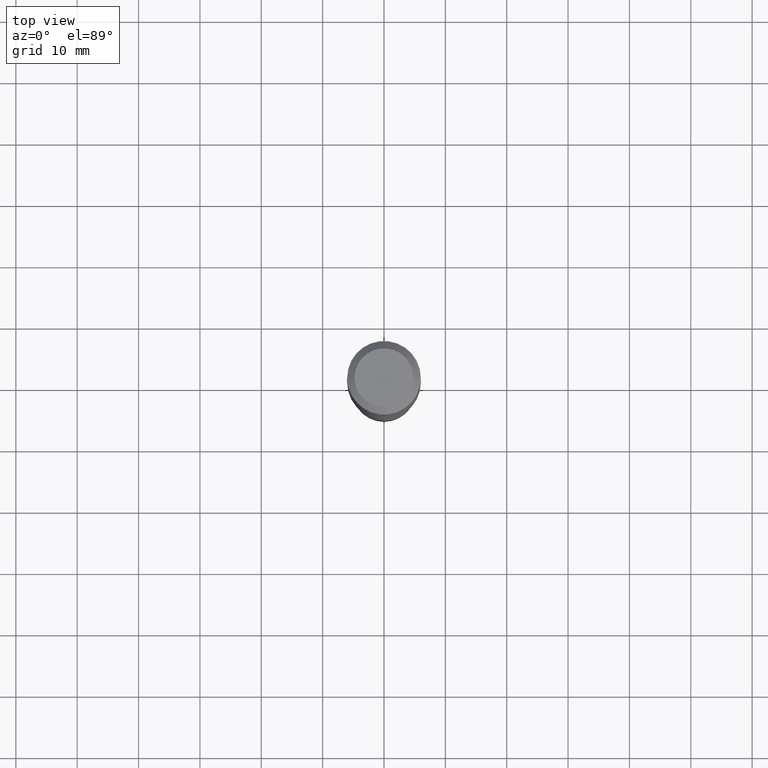
[diagram: clean part render]
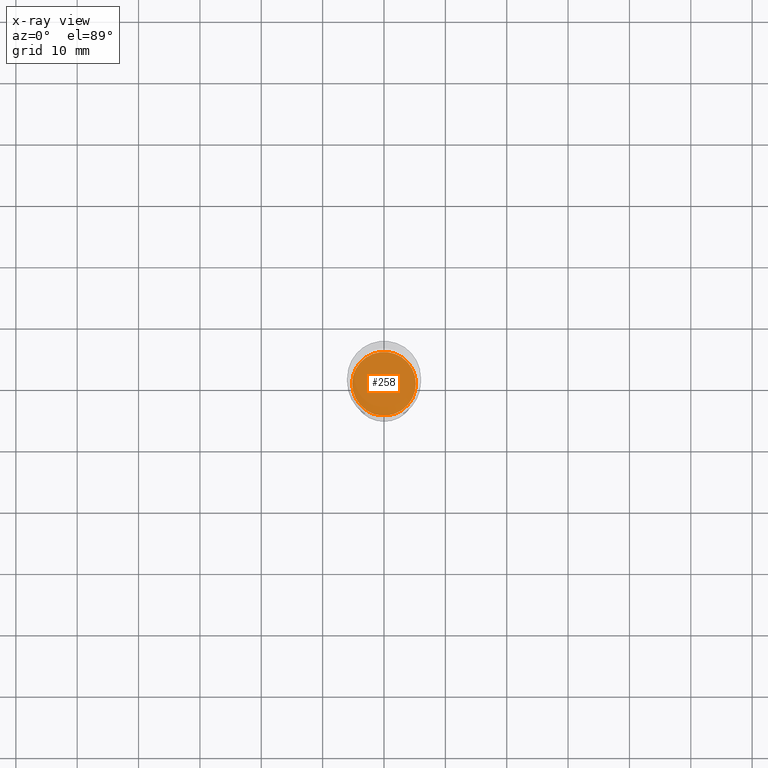
[diagram: x-ray — body ghosted, one internal face saturated and labeled with its STEP entity id]
A machine part, top view, then the same camera in x-ray: the body is ghosted and one INTERNAL B-rep face — a face not visible from any outside direction — is saturated and labeled: STEP entity #258.
In plain terms, the highlighted planar face has unit normal (-0, 0, 1).
Its self-contained STEP definition (entity closure, byte-faithful):
#3 = FACE_OUTER_BOUND ( 'NONE', #19, .T. ) ;
#15 = ORIENTED_EDGE ( 'NONE', *, *, #223, .F. ) ;
#16 = CARTESIAN_POINT ( 'NONE',  ( 5.526514955097788983E-29, -7.890398677651621852E-15, -2.259899999999999132 ) ) ;
#19 = EDGE_LOOP ( 'NONE', ( #380, #15 ) ) ;
#30 = CARTESIAN_POINT ( 'NONE',  ( 0.2042499999999999871, -9.316668804569043122E-15, -2.259899999999999132 ) ) ;
#63 = EDGE_CURVE ( 'NONE', #273, #431, #423, .T. ) ;
#96 = AXIS2_PLACEMENT_3D ( 'NONE', #294, #242, #402 ) ;
#114 = AXIS2_PLACEMENT_3D ( 'NONE', #16, #390, #432 ) ;
#146 = PLANE ( 'NONE',  #96 ) ;
#175 = DIRECTION ( 'NONE',  ( 1.000000000000000000, -6.982962677686270655E-15, 0.000000000000000000 ) ) ;
#198 = CIRCLE ( 'NONE', #114, 0.2042499999999999871 ) ;
#216 = DIRECTION ( 'NONE',  ( -2.445468806185136597E-29, 3.491481338843145583E-15, 1.000000000000000000 ) ) ;
#223 = EDGE_CURVE ( 'NONE', #431, #273, #198, .T. ) ;
#239 = AXIS2_PLACEMENT_3D ( 'NONE', #458, #216, #175 ) ;
#242 = DIRECTION ( 'NONE',  ( -2.438088387897960049E-29, 3.491481338843145188E-15, 1.000000000000000000 ) ) ;
#258 = ADVANCED_FACE ( 'NONE', ( #3 ), #146, .F. ) ;
#273 = VERTEX_POINT ( 'NONE', #30 ) ;
#293 = CARTESIAN_POINT ( 'NONE',  ( -0.2042499999999999871, -6.436465912687506508E-15, -2.259899999999999132 ) ) ;
#294 = CARTESIAN_POINT ( 'NONE',  ( 5.526514955097788983E-29, -7.890398677651621852E-15, -2.259899999999999132 ) ) ;
#380 = ORIENTED_EDGE ( 'NONE', *, *, #63, .F. ) ;
#390 = DIRECTION ( 'NONE',  ( -2.445468806185136597E-29, 3.491481338843145583E-15, 1.000000000000000000 ) ) ;
#402 = DIRECTION ( 'NONE',  ( 1.000000000000000000, -6.982962677686265922E-15, 4.876176775795935793E-29 ) ) ;
#423 = CIRCLE ( 'NONE', #239, 0.2042499999999999871 ) ;
#431 = VERTEX_POINT ( 'NONE', #293 ) ;
#432 = DIRECTION ( 'NONE',  ( 1.000000000000000000, -6.982962677686270655E-15, 0.000000000000000000 ) ) ;
#458 = CARTESIAN_POINT ( 'NONE',  ( 5.526514955097788983E-29, -7.890398677651621852E-15, -2.259899999999999132 ) ) ;